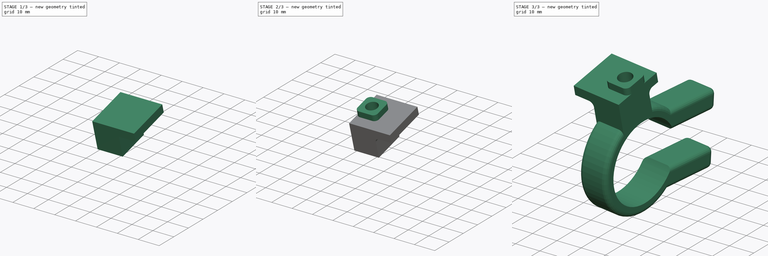
[diagram: build sequence overview — one tinted view per stage of 3, left to right]
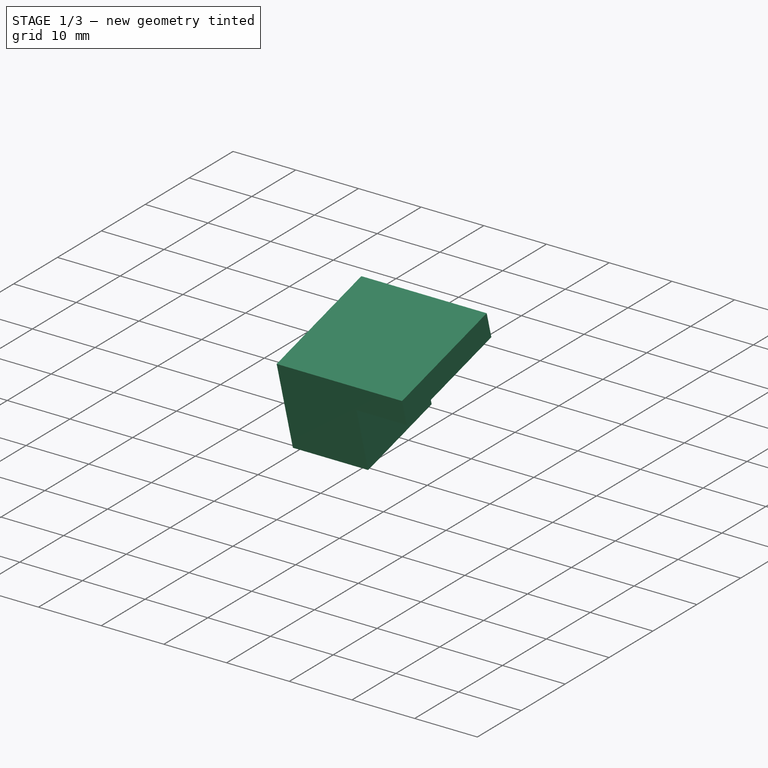
[diagram: stage 1 of 3 — iso view after this stage's code; geometry added in this stage tinted green]
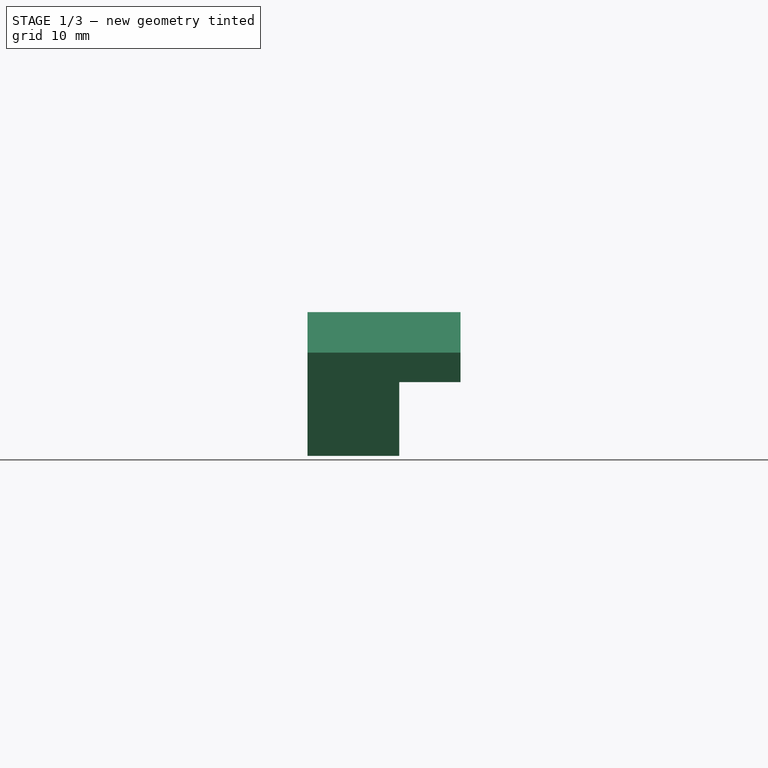
[diagram: stage 1 of 3 — front view after this stage's code; geometry added in this stage tinted green]
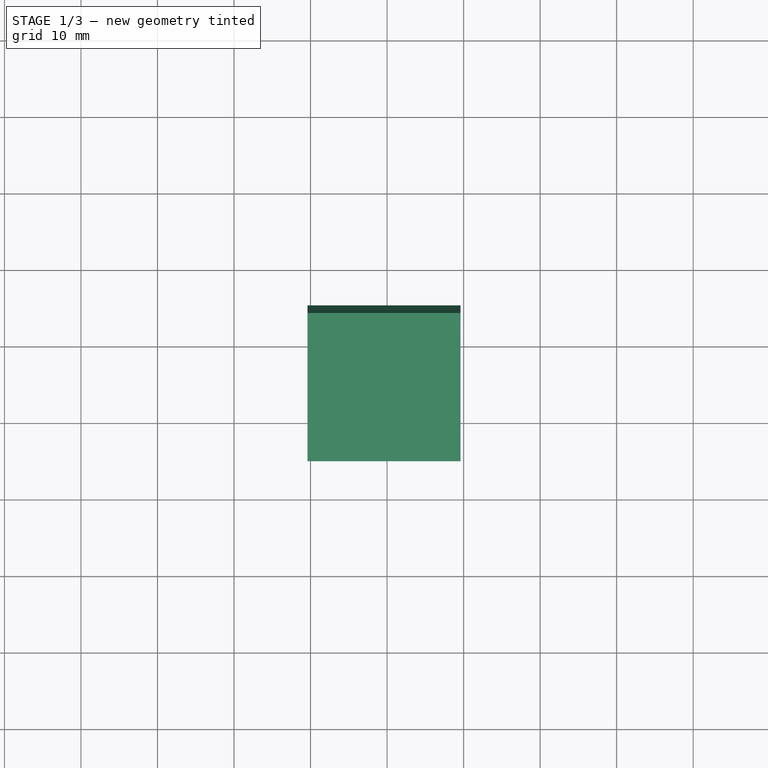
[diagram: stage 1 of 3 — top view after this stage's code; geometry added in this stage tinted green]
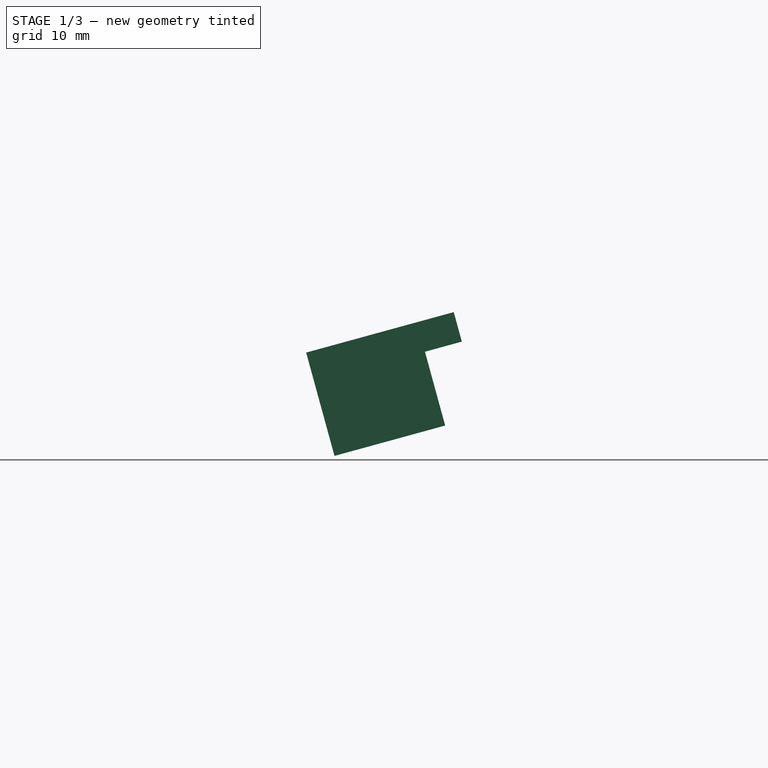
[diagram: stage 1 of 3 — right view after this stage's code; geometry added in this stage tinted green]
FCSTD DOCUMENT  (FreeCAD 0.20R27319 (Git))
Label: KlickFixPlateAdapter
License: All rights reserved
LicenseURL: http://en.wikipedia.org/wiki/All_rights_reserved
objects: Sketcher::SketchObject×3, App::AnnotationLabel×2, Part::FeaturePython×2, PartDesign::AdditiveBox×2, App::DocumentObjectGroup×1, Part::Feature×1, PartDesign::Fillet×1, PartDesign::Pad×1, PartDesign::Line×1, PartDesign::Pocket×1, PartDesign::Body×1, Part::MultiFuse×1, Part::Mirroring×1
note: 20 computed .brp shape members not serialized (recipe doc carries the construction recipe); baked Part::Feature solids carry a one-line shape summary decoded from their .brp

FEATURE [App::AnnotationLabel] MeasureLbl002
  BasePosition = (-64.4,34.4088,-13.1503)
  LabelText = D = 12,00 mm
  TextPosition = (0,0,0)
FEATURE [Part::FeaturePython] DistPoints  # WARN: FeaturePython — macro-defined, semantics opaque (R4)
FEATURE [Part::FeaturePython] DistPoints001  # WARN: FeaturePython — macro-defined, semantics opaque (R4)
FEATURE [App::AnnotationLabel] MeasureLbl
  BasePosition = (-65.4,-1.31692,25.5984)
  LabelText = D = 10,00 mm
  TextPosition = (0,0,0)
FEATURE [App::DocumentObjectGroup] Measures
  Group = -> [DistPoints001,MeasureLbl]
FEATURE [Part::Feature] Shell
  Placement = pos=(-64.4,0,0) rot=(0,0,1;0rad)
  shape: bbox 12 x 56.35 x 40 mm, 1930 faces (baked)
FEATURE [PartDesign::AdditiveBox] Box
  AttacherType = Attacher::AttachEngine3D
  AttachmentOffset = pos=(-6,-7.5,-3.9) rot=(0,0,1;0rad)
  Height = 10
  Length = 12
  MapMode = 5
  Placement = pos=(-70.4,-11.4738,13.4808) rot=(1,0,0;0.267655rad)
  Refine = true
  Support = -> [Shell]
  Width = 15
  expr: .AttachmentOffset.Base.x = -Length / 2
  expr: .AttachmentOffset.Base.y = -Width / 2
FEATURE [PartDesign::AdditiveBox] Box001
  AttacherType = Attacher::AttachEngine3D
  BaseFeature = -> Box
  Height = 4
  Length = 20
  MapMode = 7
  Placement = pos=(-70.4,-14.1185,23.1247) rot=(1,0,0;0.267655rad)
  Refine = true
  Support = -> [Box]
  Width = 20
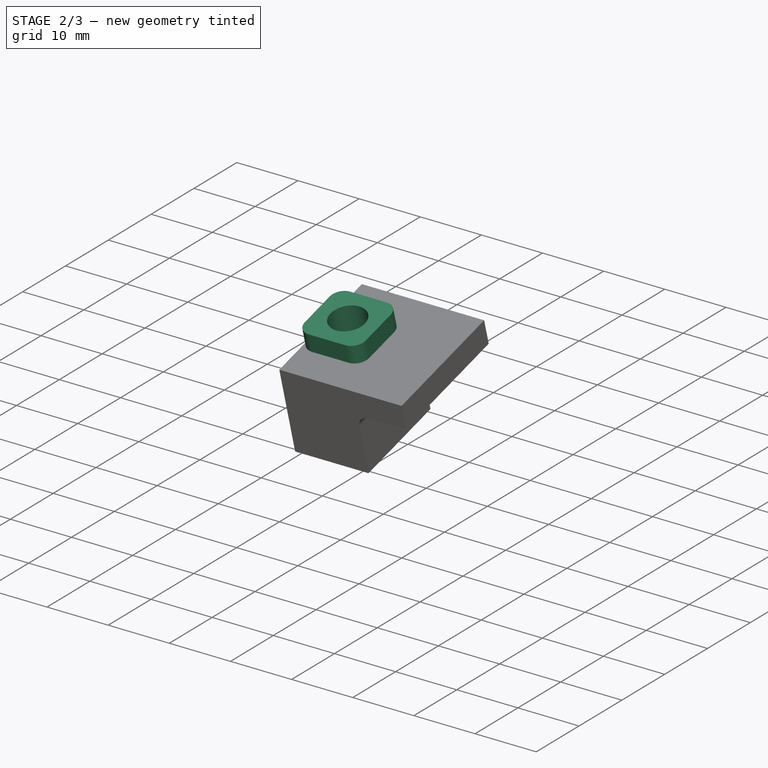
[diagram: stage 2 of 3 — iso view after this stage's code; geometry added in this stage tinted green]
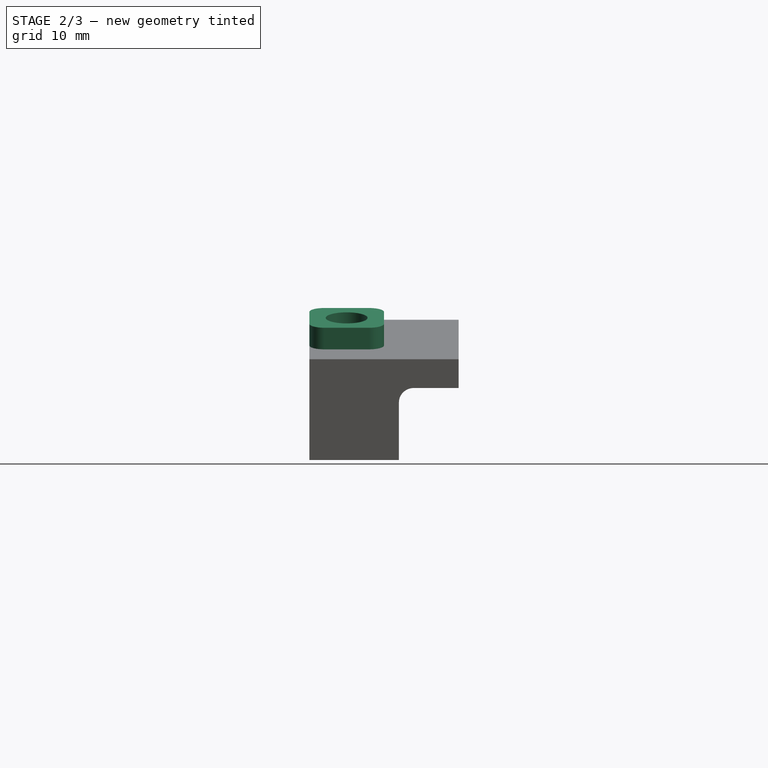
[diagram: stage 2 of 3 — front view after this stage's code; geometry added in this stage tinted green]
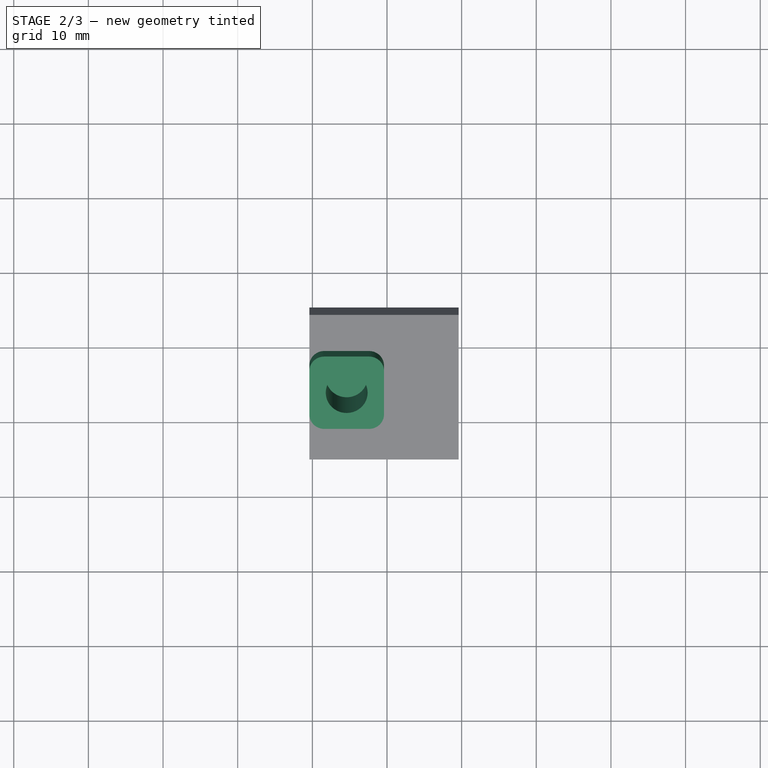
[diagram: stage 2 of 3 — top view after this stage's code; geometry added in this stage tinted green]
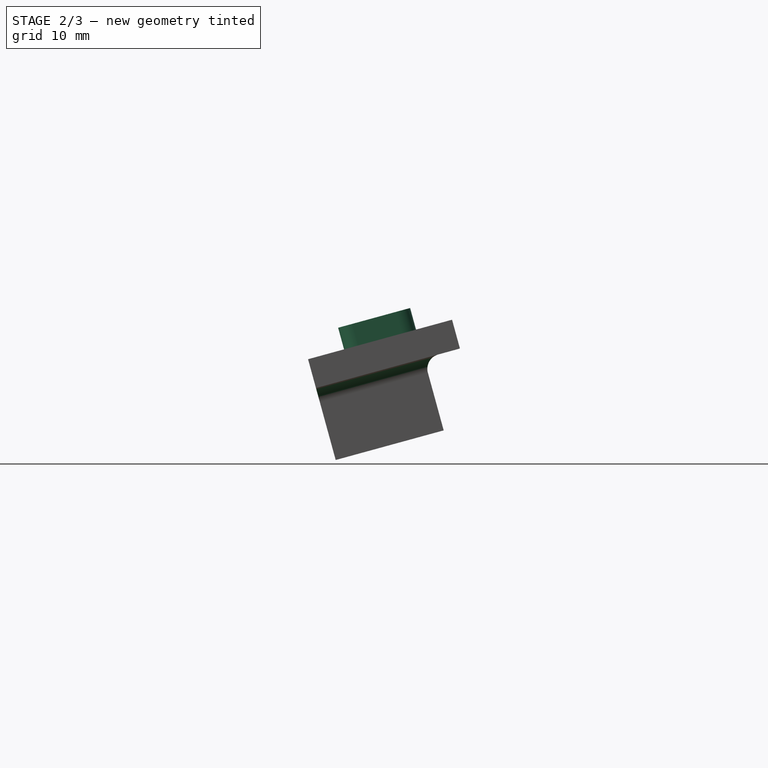
[diagram: stage 2 of 3 — right view after this stage's code; geometry added in this stage tinted green]
FEATURE [PartDesign::Fillet] Fillet
  Base = -> Box001 [Edge12,Edge11]
  BaseFeature = -> Box001
  Placement = pos=(-70.4,-14.1185,23.1247) rot=(1,0,0;0.267655rad)
  Radius = 2
  Refine = true
  SupportTransform = false
FEATURE [Sketcher::SketchObject] Sketch
  ExternalGeometry = -> [Fillet]
  FullyConstrained = true
  MapMode = 5
  Placement = pos=(-70.4,-15.1764,26.9823) rot=(1,0,0;0.267655rad)
  Support = -> [Fillet]
  sketch-geometry (15):
    g0: LineSegment StartX=2 StartY=15 StartZ=0 EndX=8 EndY=15 EndZ=0
    g1: LineSegment StartX=10 StartY=13 StartZ=0 EndX=10 EndY=7 EndZ=0
    g2: LineSegment StartX=8 StartY=5 StartZ=0 EndX=2 EndY=5 EndZ=0
    g3: LineSegment StartX=4e-16 StartY=7 StartZ=0 EndX=4e-16 EndY=13 EndZ=0
    g4: GeomPoint X=10 Y=10 Z=0
    g5: ArcOfCircle CenterX=2 CenterY=13 CenterZ=0 NormalX=0 NormalY=0 NormalZ=1 AngleXU=0 Radius=2 StartAngle=1.5708 EndAngle=3.14159
    g6: GeomPoint X=0 Y=15 Z=0
    g7: ArcOfCircle CenterX=8 CenterY=13 CenterZ=0 NormalX=0 NormalY=0 NormalZ=1 AngleXU=0 Radius=2 StartAngle=0 EndAngle=1.5708
    g8: GeomPoint X=10 Y=15 Z=0
    g9: ArcOfCircle CenterX=8 CenterY=7 CenterZ=0 NormalX=0 NormalY=0 NormalZ=1 AngleXU=0 Radius=2 StartAngle=4.71239 EndAngle=6.28319
    g10: GeomPoint X=10 Y=5 Z=0
    g11: ArcOfCircle CenterX=2 CenterY=7 CenterZ=0 NormalX=0 NormalY=0 NormalZ=1 AngleXU=0 Radius=2 StartAngle=3.14159 EndAngle=4.71239
    g12: GeomPoint X=0 Y=5 Z=0
    g13: GeomPoint X=5 Y=10 Z=0
    g14: LineSegment StartX=5 StartY=10 StartZ=0 EndX=10 EndY=10 EndZ=0
  constraints (33):
    c: Horizontal(g0)
    c: Horizontal(g2)
    c: Vertical(g1)
    c: Vertical(g3)
    c: Symmetric(g-1,g-3,g4)
    c: DistanceY(g10,g8) = 10
    c: PointOnObject(g6,g0)
    c: PointOnObject(g6,g3)
    c: Tangent(g0,g5) = 1.5708
    c: Tangent(g3,g5) = 1.5708
    c: PointOnObject(g8,g0)
    c: PointOnObject(g8,g1)
    c: Tangent(g0,g7) = 1.5708
    c: Tangent(g1,g7) = 1.5708
    c: PointOnObject(g10,g1)
    c: PointOnObject(g10,g2)
    c: Tangent(g1,g9) = 1.5708
    c: Tangent(g2,g9) = 1.5708
    c: PointOnObject(g12,g2)
    c: PointOnObject(g12,g3)
    c: Tangent(g2,g11) = 1.5708
    c: Tangent(g3,g11) = 1.5708
    c: Equal(g11,g5)
    c: Equal(g5,g7)
    c: Equal(g7,g9)
    c: Radius(g7) = 2
    c: Equal(g1,g0)
    c: Symmetric(g12,g8,g13)
    c: Coincident(g14,g13)
    c: Coincident(g14,g4)
    c: Horizontal(g14)
    c: DistanceX(g14,g14) = 5
    c: PointOnObject(g3,g-2)
FEATURE [PartDesign::Pad] Pad
  BaseFeature = -> Fillet
  Direction = (0,-0.26447,0.964394)
  Length = 3
  Length2 = 10
  Placement = pos=(-70.4,-14.1185,23.1247) rot=(1,0,0;0.267655rad)
  Profile = -> Sketch
  ReferenceAxis = -> Sketch [N_Axis]
  Refine = true
  Type = 0
FEATURE [Sketcher::SketchObject] Sketch001
  ExternalGeometry = -> [Pad]
  FullyConstrained = true
  MapMode = 5
  Placement = pos=(-70.4,-15.9698,29.8755) rot=(1,0,0;0.267655rad)
  Support = -> [Pad]
  sketch-geometry (1):
    g0: Circle CenterX=5 CenterY=10 CenterZ=0 NormalX=0 NormalY=0 NormalZ=1 AngleXU=0 Radius=2.8
  constraints (2):
    c: Diameter(g0) = 5.6  'Einschmelzmutter M4'
    c: Symmetric(g-4,g-3,g0)
FEATURE [PartDesign::Line] HoleAxis_1
  AttacherType = Attacher::AttachEngineLine
  Length = 7.9196
  MapMode = 19
  Placement = pos=(-65.4,-6.32586,32.5202) rot=(1,0,0;0.267655rad)
  ResizeMode = 1
  Support = -> [Sketch001]
FEATURE [PartDesign::Pocket] Pocket
  BaseFeature = -> Pad
  Direction = (1e-16,0.26447,-0.964394)
  Length = 8.5
  Length2 = 5
  Placement = pos=(-70.4,-14.1185,23.1247) rot=(1,0,0;0.267655rad)
  Profile = -> Sketch001
  ReferenceAxis = -> Sketch001 [N_Axis]
  Refine = true
  Type = 0
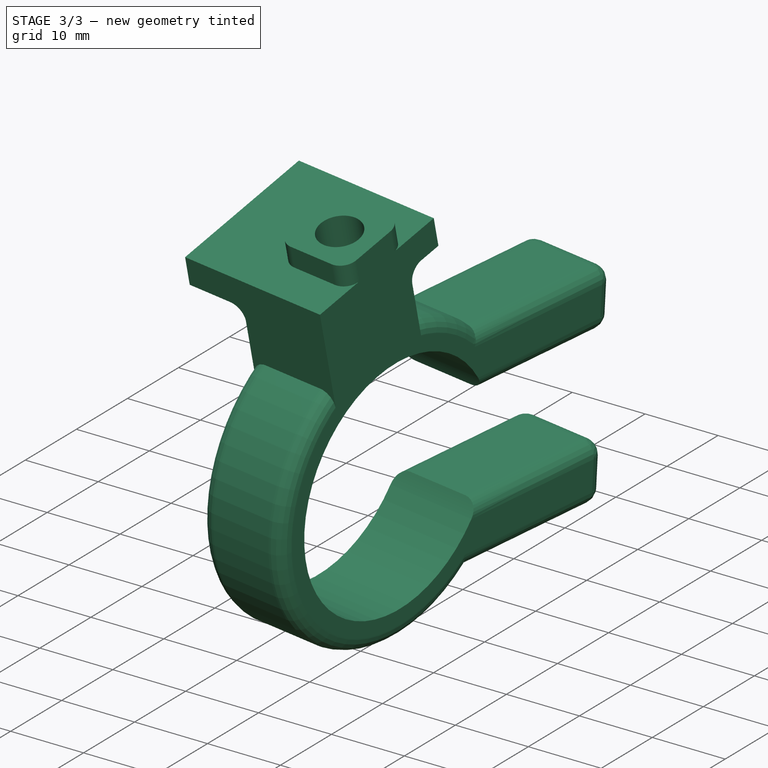
[diagram: stage 3 of 3 — iso view after this stage's code; geometry added in this stage tinted green]
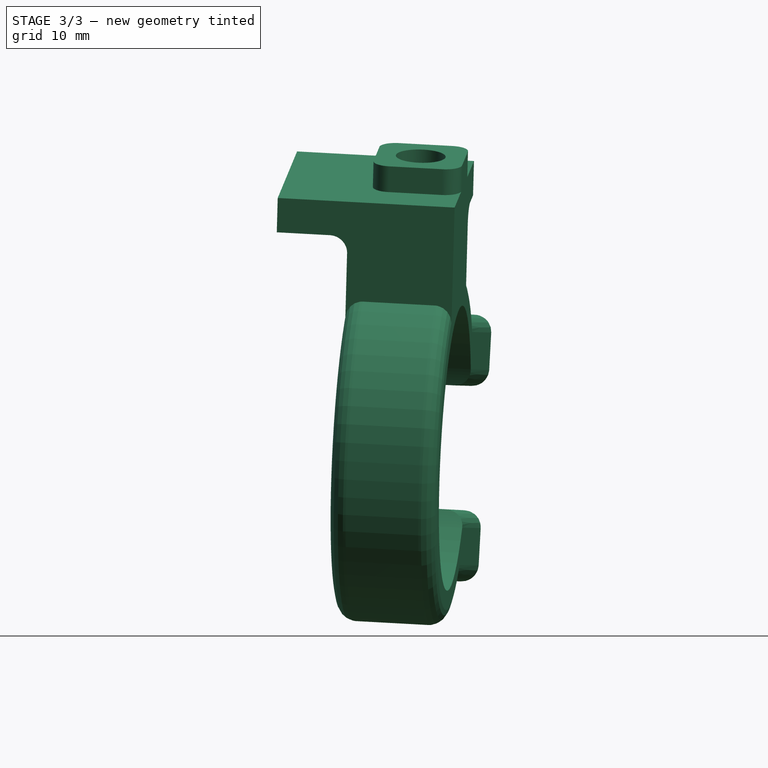
[diagram: stage 3 of 3 — front view after this stage's code; geometry added in this stage tinted green]
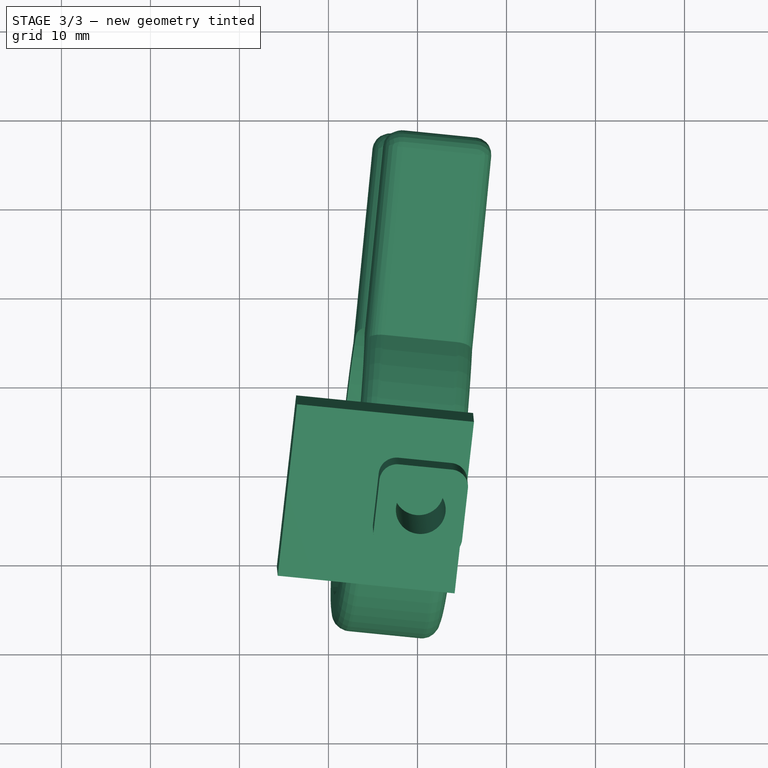
[diagram: stage 3 of 3 — top view after this stage's code; geometry added in this stage tinted green]
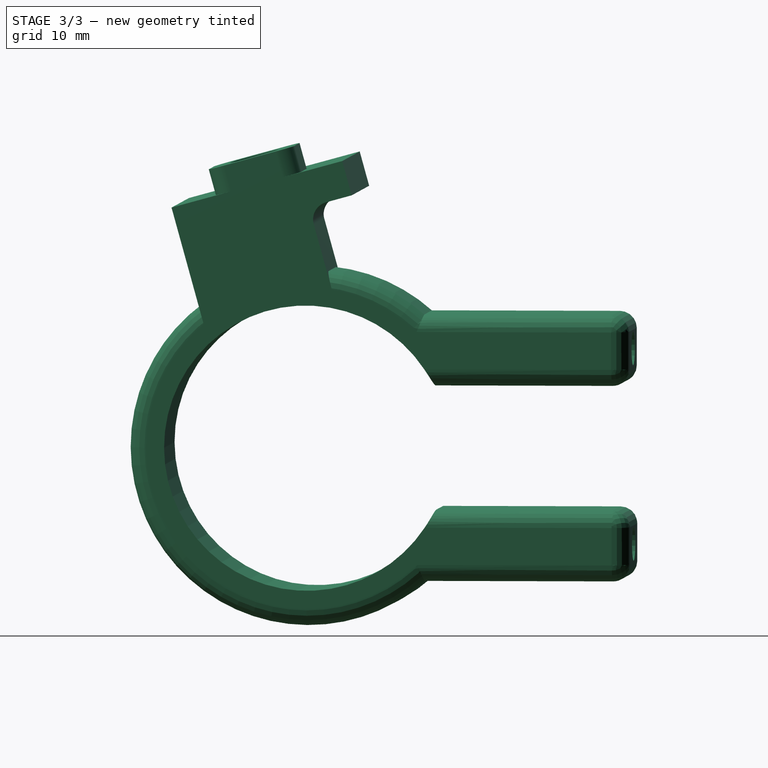
[diagram: stage 3 of 3 — right view after this stage's code; geometry added in this stage tinted green]
FEATURE [Sketcher::SketchObject] Sketch002
  AttachmentOffset = pos=(0,0,-58.5) rot=(0,0,1;0rad)
  ExternalGeometry = -> [Pocket]
  FullyConstrained = true
  MapMode = 5
  Placement = pos=(-58.5,1.3e-14,-1.3e-14) rot=(0.57735,0.57735,0.57735;2.0944rad)
  Support = -> [YZ_Plane]
  sketch-geometry (7):
    g0: LineSegment StartX=-15.3969 StartY=9.47247 StartZ=0 EndX=-14.226 EndY=11.1291 EndZ=0
    g1: ArcOfCircle CenterX=-25.6392 CenterY=16.8546 CenterZ=0 NormalX=0 NormalY=0 NormalZ=1 AngleXU=0 Radius=12.7687 StartAngle=5.81821 EndAngle=6.55084
    g2: LineSegment StartX=-14.226 StartY=11.1291 StartZ=0 EndX=-6.09214 EndY=22.2151 EndZ=0
    g3: LineSegment StartX=-6.09214 StartY=22.2151 StartZ=0 EndX=7.44976 EndY=16.3532 EndZ=0
    g4: LineSegment StartX=7.44976 StartY=16.3532 StartZ=0 EndX=9.23385 EndY=15.4094 EndZ=0
    g5: ArcOfCircle CenterX=13.33 CenterY=27.5413 CenterZ=0 NormalX=0 NormalY=0 NormalZ=1 AngleXU=0 Radius=12.6392 StartAngle=3.40925 EndAngle=4.22849
    g6: LineSegment StartX=-13.3251 StartY=20.2315 StartZ=0 EndX=1.14081 EndY=24.1986 EndZ=0
  constraints (14):
    c: Block(g0)
    c: Coincident(g1,g0)
    c: Tangent(g1,g-3) = -1.5708
    c: Coincident(g2,g1)
    c: Coincident(g3,g2)
    c: Block(g4)
    c: Coincident(g3,g4)
    c: Coincident(g5,g3)
    c: Tangent(g5,g-4) = 1.5708
    c: Coincident(g6,g1)
    c: Coincident(g6,g5)
    c: Parallel(g6,g-5)
    c: Distance(g5,g-5) = 1
    c: Symmetric(g1,g5,g2)
FEATURE [PartDesign::Body] Body
  Group = -> [Box,Box001,Fillet,Sketch,Pad,Sketch001,Pocket,HoleAxis_1,Sketch002]
  Origin = -> Origin
  Tip = -> Pocket
FEATURE [Part::MultiFuse] Fusion
  Shapes = -> [Shell,Body]
FEATURE [Part::Mirroring] mirror  label="Fusion (gespiegelt) "
  Base = (-83.5052,3.86832,-20.7095)
  Normal = (0.998429,-0.0491173,-0.0269754)
  Source = -> Fusion
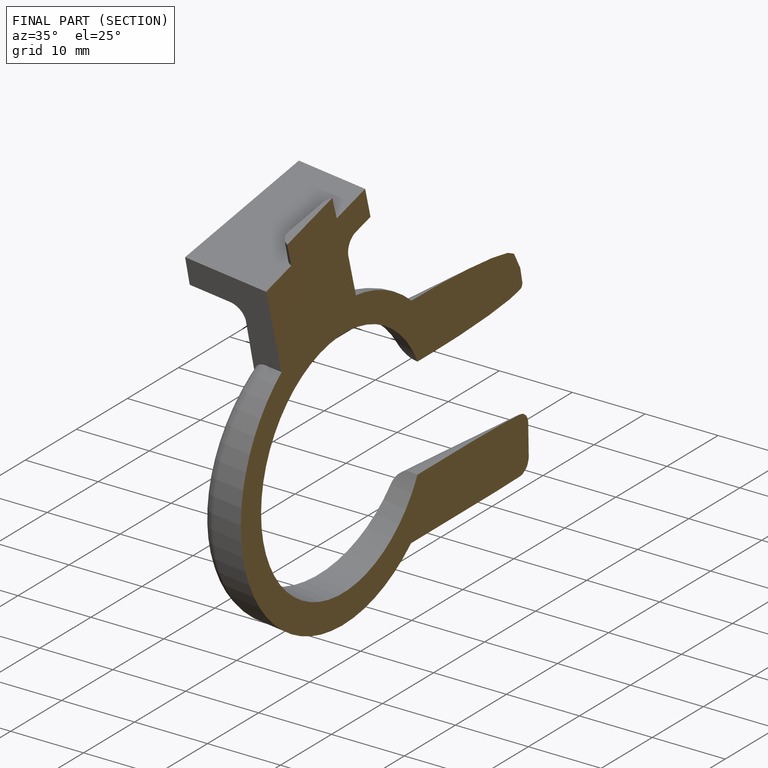
[diagram: finished part — half-section view (interior)]
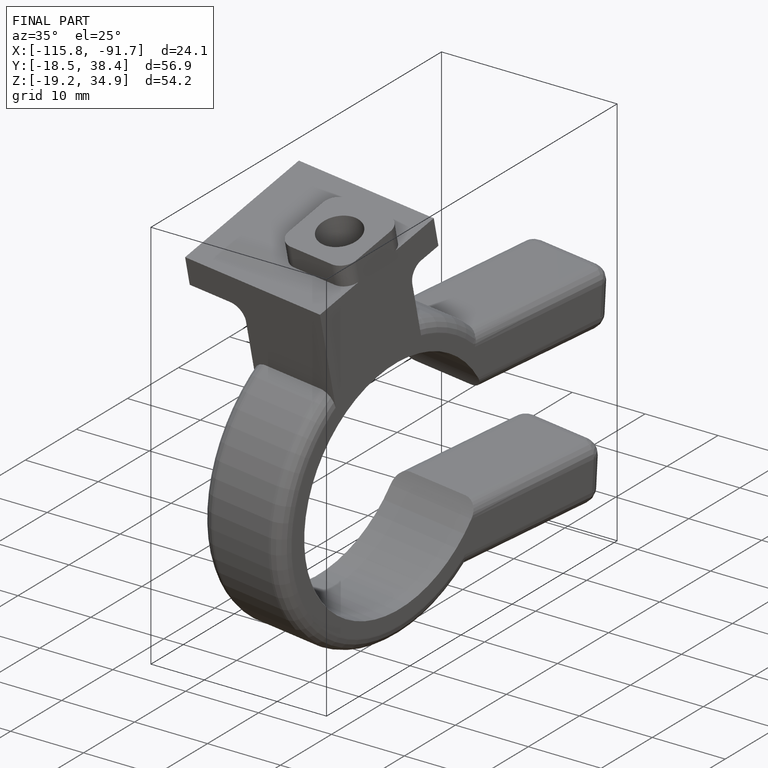
[diagram: finished part — iso view with bounding-box wireframe]
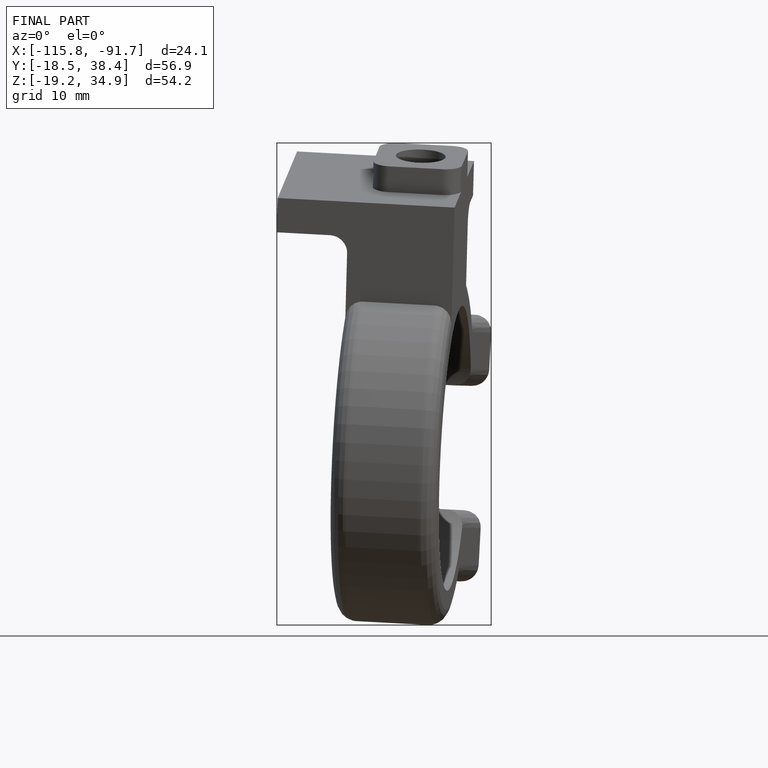
[diagram: finished part — front view with bounding-box wireframe]
